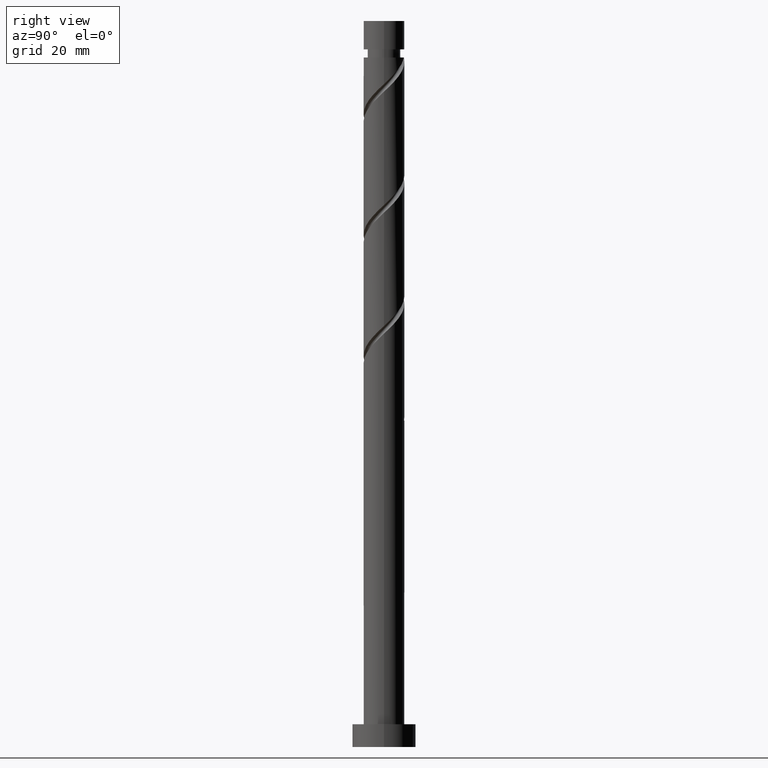
[diagram: clean part render]
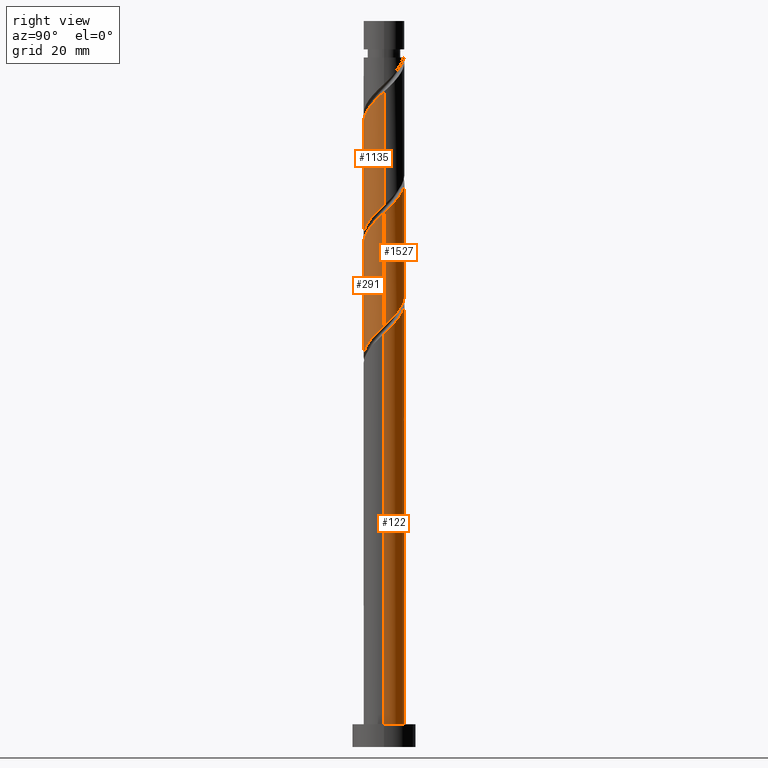
[diagram: same view with one multi-face feature highlighted, each face labeled with its STEP entity id]
A machine part, right view. The highlighted faces form ONE feature: a constant-radius fillet chain: 4 tangent blend faces with common blend radius 4.5 mm. The faces share edges in the B-rep.
Their STEP definitions:
[1] entity #1135 (Cylinder):
#3 = CARTESIAN_POINT ( 'NONE',  ( -4.500000000000000000, 0.000000000000000000, 160.0000000000000000 ) ) ;
#29 = CARTESIAN_POINT ( 'NONE',  ( 2.673760399956920608, -3.676903225482061721, 140.4377904475306877 ) ) ;
#38 = CARTESIAN_POINT ( 'NONE',  ( 3.601357663860914826, -2.774677455649294799, 141.6499116596518490 ) ) ;
#48 = VERTEX_POINT ( 'NONE', #1216 ) ;
#91 = CARTESIAN_POINT ( 'NONE',  ( -4.237671230118718491, -1.513982346470448048, 132.5590025687427271 ) ) ;
#98 = CARTESIAN_POINT ( 'NONE',  ( -2.233908606408681941, -3.959578808933017946, 135.5893055990458151 ) ) ;
#104 = VECTOR ( 'NONE', #790, 1000.000000000000000 ) ;
#108 = CARTESIAN_POINT ( 'NONE',  ( 4.019993431204683887, -2.123267486448495944, 117.4074874172276139 ) ) ;
#115 = CARTESIAN_POINT ( 'NONE',  ( 4.237671230118713162, -1.513982346470447160, 118.0135480232882514 ) ) ;
#124 = CARTESIAN_POINT ( 'NONE',  ( 4.500000000000000888, -0.1294898693571973902, 119.3469651039315096 ) ) ;
#134 = CARTESIAN_POINT ( 'NONE',  ( 1.630892978049456765, -4.194065819005344586, 114.3771843869246112 ) ) ;
#142 = CARTESIAN_POINT ( 'NONE',  ( -4.500000000000000000, -0.5153801732330511864, 106.6216897282877056 ) ) ;
#166 = CARTESIAN_POINT ( 'NONE',  ( 0.8954886933959580464, -4.410000000000006359, 138.6196086293487895 ) ) ;
#218 = CARTESIAN_POINT ( 'NONE',  ( -4.500000000000006217, -2.318307209041941552E-15, 131.1034874833812864 ) ) ;
#225 = EDGE_CURVE ( 'NONE', #1571, #813, #870, .T. ) ;
#244 = CARTESIAN_POINT ( 'NONE',  ( -0.8954886933959586015, -4.410000000000001030, 111.9529419626821607 ) ) ;
#322 = EDGE_LOOP ( 'NONE', ( #636, #542, #1319, #1633 ) ) ;
#338 = DIRECTION ( 'NONE',  ( -0.000000000000000000, -0.000000000000000000, -1.000000000000000000 ) ) ;
#351 = CARTESIAN_POINT ( 'NONE',  ( -4.500000000000005329, -0.1294898693572155701, 131.2255854880995116 ) ) ;
#383 = CARTESIAN_POINT ( 'NONE',  ( 2.233908606408677056, -3.959578808933011729, 114.9832449929852203 ) ) ;
#400 = CARTESIAN_POINT ( 'NONE',  ( 2.101655684935354707, -3.979075694426907006, 139.8317298414700076 ) ) ;
#403 = CARTESIAN_POINT ( 'NONE',  ( -4.237194347937610850, -1.647663820002032598, 107.7105177202579256 ) ) ;
#415 = CARTESIAN_POINT ( 'NONE',  ( -4.500000000000000888, 3.559723327432168198E-15, 106.1357297753163778 ) ) ;
#484 = CARTESIAN_POINT ( 'NONE',  ( -4.019993431204690104, -2.123267486448498165, 133.1650631748033788 ) ) ;
#491 = CARTESIAN_POINT ( 'NONE',  ( -1.027877349690239805, -4.428552829077683661, 136.8014268111670617 ) ) ;
#507 = CARTESIAN_POINT ( 'NONE',  ( -2.101655684935353374, -3.979075694426899013, 110.7408207505609568 ) ) ;
#514 = CARTESIAN_POINT ( 'NONE',  ( 0.3832254664060548155, -4.483652332852966715, 113.1650631748033931 ) ) ;
#516 = CARTESIAN_POINT ( 'NONE',  ( -1.529550969913790137, -4.281248163371742521, 111.3468813566215800 ) ) ;
#533 = CARTESIAN_POINT ( 'NONE',  ( 4.383476546723556133, -1.017415040347144917, 143.4680934778336621 ) ) ;
#539 = CARTESIAN_POINT ( 'NONE',  ( 4.500000000000012434, -0.5153801732330393071, 143.9508608637433724 ) ) ;
#542 = ORIENTED_EDGE ( 'NONE', *, *, #1389, .F. ) ;
#558 = CARTESIAN_POINT ( 'NONE',  ( -4.500000000000000888, 3.559723327432168198E-15, 106.1357297753163778 ) ) ;
#595 = CARTESIAN_POINT ( 'NONE',  ( -3.639477652303308108, -2.646545374329497324, 133.7711237808639453 ) ) ;
#603 = CARTESIAN_POINT ( 'NONE',  ( 3.639477652303302779, -2.646545374329494660, 116.8014268111670049 ) ) ;
#625 = CARTESIAN_POINT ( 'NONE',  ( 4.492553887271115265, -0.2587654729000734566, 119.2256692354094412 ) ) ;
#636 = ORIENTED_EDGE ( 'NONE', *, *, #1493, .F. ) ;
#649 = CARTESIAN_POINT ( 'NONE',  ( -0.3832254664060574800, -4.483652332852973821, 137.4074874172275713 ) ) ;
#669 = CARTESIAN_POINT ( 'NONE',  ( 3.137559031908917273, -3.225790340565678704, 141.0438510535912258 ) ) ;
#673 = VERTEX_POINT ( 'NONE', #1499 ) ;
#712 = CYLINDRICAL_SURFACE ( 'NONE', #940, 4.500000000000000000 ) ;
#725 = CARTESIAN_POINT ( 'NONE',  ( -4.492553887271119706, -0.2587654729000719023, 131.3468813566215374 ) ) ;
#734 =( BOUNDED_CURVE ( )  B_SPLINE_CURVE ( 2, ( #218, #351, #725, #1642, #91, #484, #595, #1511, #1627, #98, #1130, #491, #649, #1552, #166, #765, #400, #29, #669, #38, #1190, #776, #533, #539, #1049 ),
 .UNSPECIFIED., .F., .T. ) 
 B_SPLINE_CURVE_WITH_KNOTS ( ( 3, 2, 2, 2, 2, 2, 2, 2, 2, 2, 2, 2, 3 ),
 ( 0.5545252162417516617, 0.5568181818181818787, 0.5681818181818181213, 0.5795454545454545858, 0.5909090909090908283, 0.6022727272727272929, 0.6136363636363636465, 0.6250000000000000000, 0.6363636363636363535, 0.6477272727272727071, 0.6590909090909091717, 0.6704545454545454142, 0.6795252162417516617 ),
 .UNSPECIFIED. ) 
 CURVE ( )  GEOMETRIC_REPRESENTATION_ITEM ( )  RATIONAL_B_SPLINE_CURVE ( ( 0.9061101570135616790, 0.9072237824201437872, 0.9090909090909210510, 0.8998376744372232894, 0.9090909090909210510, 0.8998376744372232894, 0.9090909090909210510, 0.8998376744372232894, 0.9090909090909210510, 0.8998376744372232894, 0.9090909090909210510, 0.8998376744372232894, 0.9090909090909210510, 0.8998376744372232894, 0.9090909090909210510, 0.8998376744372232894, 0.9090909090909210510, 0.8998376744372232894, 0.9090909090909210510, 0.8998376744372232894, 0.9090909090909210510, 0.8998376744372232894, 0.9090909090909210510, 0.9017048011080005532, 0.9061101570135616790 ) ) 
 REPRESENTATION_ITEM ( '' )  );
#765 = CARTESIAN_POINT ( 'NONE',  ( 1.529550969913791469, -4.281248163371747850, 139.2256692354094696 ) ) ;
#776 = CARTESIAN_POINT ( 'NONE',  ( 4.237194347937617955, -1.647663820002035040, 142.8620328717730672 ) ) ;
#790 = DIRECTION ( 'NONE',  ( -0.000000000000000000, -0.000000000000000000, -1.000000000000000000 ) ) ;
#813 = VERTEX_POINT ( 'NONE', #415 ) ;
#850 = FACE_OUTER_BOUND ( 'NONE', #322, .T. ) ;
#870 =( BOUNDED_CURVE ( )  B_SPLINE_CURVE ( 2, ( #1377, #124, #625, #1512, #115, #108, #603, #1282, #1519, #383, #134, #1159, #514, #1031, #244, #516, #507, #1153, #1025, #1538, #1424, #403, #1033, #142, #558 ),
 .UNSPECIFIED., .F., .T. ) 
 B_SPLINE_CURVE_WITH_KNOTS ( ( 3, 2, 2, 2, 2, 2, 2, 2, 2, 2, 2, 2, 3 ),
 ( 0.5545252162417512176, 0.5568181818181817677, 0.5681818181818182323, 0.5795454545454545858, 0.5909090909090909394, 0.6022727272727272929, 0.6136363636363636465, 0.6250000000000000000, 0.6363636363636363535, 0.6477272727272727071, 0.6590909090909090606, 0.6704545454545454142, 0.6795252162417513286 ),
 .UNSPECIFIED. ) 
 CURVE ( )  GEOMETRIC_REPRESENTATION_ITEM ( )  RATIONAL_B_SPLINE_CURVE ( ( 0.9061101570135546845, 0.9072237824201369039, 0.9090909090909143897, 0.8998376744372167391, 0.9090909090909143897, 0.8998376744372167391, 0.9090909090909143897, 0.8998376744372167391, 0.9090909090909143897, 0.8998376744372167391, 0.9090909090909143897, 0.8998376744372167391, 0.9090909090909143897, 0.8998376744372167391, 0.9090909090909143897, 0.8998376744372167391, 0.9090909090909143897, 0.8998376744372167391, 0.9090909090909143897, 0.8998376744372167391, 0.9090909090909143897, 0.8998376744372167391, 0.9090909090909143897, 0.9017048011079942249, 0.9061101570135549066 ) ) 
 REPRESENTATION_ITEM ( '' )  );
#909 = LINE ( 'NONE', #1030, #1422 ) ;
#940 = AXIS2_PLACEMENT_3D ( 'NONE', #1617, #338, #1231 ) ;
#1025 = CARTESIAN_POINT ( 'NONE',  ( -3.137559031908914164, -3.225790340565672487, 109.5286995384397528 ) ) ;
#1030 = CARTESIAN_POINT ( 'NONE',  ( 4.500000000000000000, 5.510910596163088569E-16, 160.0000000000000000 ) ) ;
#1031 = CARTESIAN_POINT ( 'NONE',  ( -0.2614264168781268438, -4.538751836628259539, 112.5590025687427982 ) ) ;
#1033 = CARTESIAN_POINT ( 'NONE',  ( -4.383476546723550804, -1.017415040347143140, 107.1044571141973307 ) ) ;
#1049 = CARTESIAN_POINT ( 'NONE',  ( 4.500000000000006217, 2.078998077785999559E-15, 144.4368208167146008 ) ) ;
#1130 = CARTESIAN_POINT ( 'NONE',  ( -1.630892978049461206, -4.194065819005349915, 136.1953662051064100 ) ) ;
#1135 = ADVANCED_FACE ( 'NONE', ( #850 ), #712, .T. ) ;
#1153 = CARTESIAN_POINT ( 'NONE',  ( -2.673760399956917055, -3.676903225482058168, 110.1347601445003619 ) ) ;
#1158 = LINE ( 'NONE', #3, #104 ) ;
#1159 = CARTESIAN_POINT ( 'NONE',  ( 1.027877349690238695, -4.428552829077677444, 113.7711237808640306 ) ) ;
#1190 = CARTESIAN_POINT ( 'NONE',  ( 3.919276005899265503, -2.211170637825665253, 142.2559722657124723 ) ) ;
#1216 = CARTESIAN_POINT ( 'NONE',  ( -4.500000000000006217, -2.318307209041941552E-15, 131.1034874833812864 ) ) ;
#1231 = DIRECTION ( 'NONE',  ( -1.000000000000000000, 0.000000000000000000, 0.000000000000000000 ) ) ;
#1282 = CARTESIAN_POINT ( 'NONE',  ( 3.258961873401920339, -3.169823262210493819, 116.1953662051064242 ) ) ;
#1290 = DIRECTION ( 'NONE',  ( -0.000000000000000000, -0.000000000000000000, -1.000000000000000000 ) ) ;
#1319 = ORIENTED_EDGE ( 'NONE', *, *, #1484, .T. ) ;
#1377 = CARTESIAN_POINT ( 'NONE',  ( 4.500000000000000888, -4.531916673159441860E-15, 119.4690631086497490 ) ) ;
#1389 = EDGE_CURVE ( 'NONE', #48, #673, #734, .T. ) ;
#1422 = VECTOR ( 'NONE', #1290, 1000.000000000000000 ) ;
#1424 = CARTESIAN_POINT ( 'NONE',  ( -3.919276005899260618, -2.211170637825660812, 108.3165783263185347 ) ) ;
#1459 = CARTESIAN_POINT ( 'NONE',  ( 4.500000000000000888, -4.531916673159441860E-15, 119.4690631086497490 ) ) ;
#1484 = EDGE_CURVE ( 'NONE', #48, #813, #1158, .T. ) ;
#1493 = EDGE_CURVE ( 'NONE', #673, #1571, #909, .T. ) ;
#1499 = CARTESIAN_POINT ( 'NONE',  ( 4.500000000000006217, 2.078998077785999559E-15, 144.4368208167146292 ) ) ;
#1511 = CARTESIAN_POINT ( 'NONE',  ( -3.258961873401924780, -3.169823262210498704, 134.3771843869246254 ) ) ;
#1512 = CARTESIAN_POINT ( 'NONE',  ( 4.455349029032740660, -0.9046972064923995971, 118.6196086293488747 ) ) ;
#1519 = CARTESIAN_POINT ( 'NONE',  ( 2.746435239905296477, -3.564701035571752996, 115.5893055990458009 ) ) ;
#1538 = CARTESIAN_POINT ( 'NONE',  ( -3.601357663860910385, -2.774677455649289026, 108.9226389323791437 ) ) ;
#1552 = CARTESIAN_POINT ( 'NONE',  ( 0.2614264168781251785, -4.538751836628264869, 138.0135480232882514 ) ) ;
#1571 = VERTEX_POINT ( 'NONE', #1459 ) ;
#1617 = CARTESIAN_POINT ( 'NONE',  ( 0.000000000000000000, 0.000000000000000000, 160.0000000000000000 ) ) ;
#1627 = CARTESIAN_POINT ( 'NONE',  ( -2.746435239905301362, -3.564701035571757881, 134.9832449929851634 ) ) ;
#1633 = ORIENTED_EDGE ( 'NONE', *, *, #225, .F. ) ;
#1642 = CARTESIAN_POINT ( 'NONE',  ( -4.455349029032745101, -0.9046972064923989310, 131.9529419626821607 ) ) ;
[2] entity #1527 (Cylinder):
#3 = CARTESIAN_POINT ( 'NONE',  ( -4.500000000000000000, 0.000000000000000000, 160.0000000000000000 ) ) ;
#10 = CARTESIAN_POINT ( 'NONE',  ( 4.500000000000000888, -4.531916673159441860E-15, 92.80239644198306337 ) ) ;
#39 = ORIENTED_EDGE ( 'NONE', *, *, #587, .F. ) ;
#48 = VERTEX_POINT ( 'NONE', #1216 ) ;
#104 = VECTOR ( 'NONE', #790, 1000.000000000000000 ) ;
#119 = CARTESIAN_POINT ( 'NONE',  ( -4.500000000000000000, 0.1294898693572028026, 106.0136317705981526 ) ) ;
#154 = VECTOR ( 'NONE', #1356, 1000.000000000000000 ) ;
#155 = CYLINDRICAL_SURFACE ( 'NONE', #1343, 4.500000000000000000 ) ;
#207 = CARTESIAN_POINT ( 'NONE',  ( 4.500000000000006217, 0.1294898693572107962, 117.8922521547661972 ) ) ;
#222 = CARTESIAN_POINT ( 'NONE',  ( 3.601357663860908609, 2.774677455649289914, 95.58930559904581514 ) ) ;
#249 = CARTESIAN_POINT ( 'NONE',  ( -1.027877349690238029, 4.428552829077677444, 100.4377904475306735 ) ) ;
#281 = VERTEX_POINT ( 'NONE', #10 ) ;
#283 = CARTESIAN_POINT ( 'NONE',  ( 4.500000000000006217, 2.078998077785999559E-15, 117.7701541500479721 ) ) ;
#284 =( BOUNDED_CURVE ( )  B_SPLINE_CURVE ( 2, ( #1599, #207, #585, #461, #445, #1099, #1613, #1488, #715, #1106, #960, #1472, #564, #335, #1620, #941, #320, #1458, #829, #303, #807, #1516, #1120, #340, #869 ),
 .UNSPECIFIED., .F., .T. ) 
 B_SPLINE_CURVE_WITH_KNOTS ( ( 3, 2, 2, 2, 2, 2, 2, 2, 2, 2, 2, 2, 3 ),
 ( 0.4295252162417514952, 0.4318181818181817677, 0.4431818181818182323, 0.4545454545454545858, 0.4659090909090909394, 0.4772727272727272929, 0.4886363636363636465, 0.5000000000000000000, 0.5113636363636363535, 0.5227272727272727071, 0.5340909090909091717, 0.5454545454545454142, 0.5545252162417516617 ),
 .UNSPECIFIED. ) 
 CURVE ( )  GEOMETRIC_REPRESENTATION_ITEM ( )  RATIONAL_B_SPLINE_CURVE ( ( 0.9061101570135615679, 0.9072237824201436762, 0.9090909090909210510, 0.8998376744372232894, 0.9090909090909210510, 0.8998376744372232894, 0.9090909090909210510, 0.8998376744372232894, 0.9090909090909210510, 0.8998376744372232894, 0.9090909090909210510, 0.8998376744372232894, 0.9090909090909210510, 0.8998376744372232894, 0.9090909090909210510, 0.8998376744372232894, 0.9090909090909210510, 0.8998376744372232894, 0.9090909090909210510, 0.8998376744372232894, 0.9090909090909210510, 0.8998376744372232894, 0.9090909090909210510, 0.9017048011080005532, 0.9061101570135616790 ) ) 
 REPRESENTATION_ITEM ( '' )  );
#303 = CARTESIAN_POINT ( 'NONE',  ( -3.601357663860915270, 2.774677455649293911, 128.3165783263185631 ) ) ;
#320 = CARTESIAN_POINT ( 'NONE',  ( -2.101655684935356039, 3.979075694426905230, 126.4983965081366790 ) ) ;
#335 = CARTESIAN_POINT ( 'NONE',  ( -0.2614264168781245123, 4.538751836628264869, 124.6802146899549086 ) ) ;
#340 = CARTESIAN_POINT ( 'NONE',  ( -4.500000000000010658, 0.5153801732330395291, 130.6175275304100012 ) ) ;
#415 = CARTESIAN_POINT ( 'NONE',  ( -4.500000000000000888, 3.559723327432168198E-15, 106.1357297753163778 ) ) ;
#445 = CARTESIAN_POINT ( 'NONE',  ( 4.237671230118718491, 1.513982346470447382, 119.2256692354094412 ) ) ;
#461 = CARTESIAN_POINT ( 'NONE',  ( 4.455349029032745101, 0.9046972064923982648, 118.6196086293488179 ) ) ;
#469 = CARTESIAN_POINT ( 'NONE',  ( 4.383476546723549916, 1.017415040347141586, 93.77112378086398792 ) ) ;
#481 = CARTESIAN_POINT ( 'NONE',  ( 0.2614264168781255671, 4.538751836628258651, 99.22566923540945538 ) ) ;
#494 = CARTESIAN_POINT ( 'NONE',  ( -3.639477652303301891, 2.646545374329494660, 103.4680934778337047 ) ) ;
#522 = DIRECTION ( 'NONE',  ( -1.000000000000000000, 0.000000000000000000, 0.000000000000000000 ) ) ;
#564 = CARTESIAN_POINT ( 'NONE',  ( 0.3832254664060578686, 4.483652332852973821, 124.0741540838942853 ) ) ;
#585 = CARTESIAN_POINT ( 'NONE',  ( 4.492553887271119706, 0.2587654729000713472, 118.0135480232882230 ) ) ;
#587 = EDGE_CURVE ( 'NONE', #791, #48, #284, .T. ) ;
#592 = CARTESIAN_POINT ( 'NONE',  ( 1.529550969913791025, 4.281248163371742521, 98.01354802328823723 ) ) ;
#600 = CARTESIAN_POINT ( 'NONE',  ( -3.258961873401919007, 3.169823262210494708, 102.8620328717730814 ) ) ;
#608 = CARTESIAN_POINT ( 'NONE',  ( -1.630892978049456765, 4.194065819005344586, 101.0438510535912542 ) ) ;
#620 = CARTESIAN_POINT ( 'NONE',  ( -0.3832254664060561478, 4.483652332852966715, 99.83172984147007867 ) ) ;
#670 = EDGE_CURVE ( 'NONE', #813, #281, #789, .T. ) ;
#715 = CARTESIAN_POINT ( 'NONE',  ( 2.746435239905300918, 3.564701035571758325, 121.6499116596518206 ) ) ;
#737 = CARTESIAN_POINT ( 'NONE',  ( -2.746435239905296921, 3.564701035571752552, 102.2559722657124865 ) ) ;
#747 = CARTESIAN_POINT ( 'NONE',  ( 3.919276005899260618, 2.211170637825661700, 94.98324499298522028 ) ) ;
#775 = ORIENTED_EDGE ( 'NONE', *, *, #670, .F. ) ;
#789 =( BOUNDED_CURVE ( )  B_SPLINE_CURVE ( 2, ( #983, #119, #886, #1632, #1401, #1271, #494, #600, #737, #1638, #608, #249, #620, #481, #998, #592, #1133, #1256, #1005, #222, #747, #1248, #469, #1140, #876 ),
 .UNSPECIFIED., .F., .T. ) 
 B_SPLINE_CURVE_WITH_KNOTS ( ( 3, 2, 2, 2, 2, 2, 2, 2, 2, 2, 2, 2, 3 ),
 ( 0.6795252162417513286, 0.6818181818181817677, 0.6931818181818182323, 0.7045454545454545858, 0.7159090909090909394, 0.7272727272727272929, 0.7386363636363636465, 0.7500000000000000000, 0.7613636363636363535, 0.7727272727272727071, 0.7840909090909090606, 0.7954545454545454142, 0.8045252162417513286 ),
 .UNSPECIFIED. ) 
 CURVE ( )  GEOMETRIC_REPRESENTATION_ITEM ( )  RATIONAL_B_SPLINE_CURVE ( ( 0.9061101570135549066, 0.9072237824201370149, 0.9090909090909143897, 0.8998376744372167391, 0.9090909090909143897, 0.8998376744372167391, 0.9090909090909143897, 0.8998376744372167391, 0.9090909090909143897, 0.8998376744372167391, 0.9090909090909143897, 0.8998376744372167391, 0.9090909090909143897, 0.8998376744372167391, 0.9090909090909143897, 0.8998376744372167391, 0.9090909090909143897, 0.8998376744372167391, 0.9090909090909143897, 0.8998376744372167391, 0.9090909090909143897, 0.8998376744372167391, 0.9090909090909143897, 0.9017048011079942249, 0.9061101570135549066 ) ) 
 REPRESENTATION_ITEM ( '' )  );
#790 = DIRECTION ( 'NONE',  ( -0.000000000000000000, -0.000000000000000000, -1.000000000000000000 ) ) ;
#791 = VERTEX_POINT ( 'NONE', #283 ) ;
#807 = CARTESIAN_POINT ( 'NONE',  ( -3.919276005899265503, 2.211170637825665253, 128.9226389323791011 ) ) ;
#808 = ORIENTED_EDGE ( 'NONE', *, *, #1119, .T. ) ;
#813 = VERTEX_POINT ( 'NONE', #415 ) ;
#829 = CARTESIAN_POINT ( 'NONE',  ( -3.137559031908917273, 3.225790340565678704, 127.7105177202579256 ) ) ;
#869 = CARTESIAN_POINT ( 'NONE',  ( -4.500000000000006217, -2.318307209041941552E-15, 131.1034874833812864 ) ) ;
#876 = CARTESIAN_POINT ( 'NONE',  ( 4.500000000000000888, -4.531916673159442649E-15, 92.80239644198306337 ) ) ;
#886 = CARTESIAN_POINT ( 'NONE',  ( -4.492553887271115265, 0.2587654729000727905, 105.8923359020761126 ) ) ;
#941 = CARTESIAN_POINT ( 'NONE',  ( -1.529550969913792136, 4.281248163371746962, 125.8923359020761268 ) ) ;
#960 = CARTESIAN_POINT ( 'NONE',  ( 1.630892978049459430, 4.194065819005349915, 122.8620328717730530 ) ) ;
#983 = CARTESIAN_POINT ( 'NONE',  ( -4.500000000000000888, 3.559723327432168198E-15, 106.1357297753163778 ) ) ;
#998 = CARTESIAN_POINT ( 'NONE',  ( 0.8954886933959590456, 4.410000000000001030, 98.61960862934886052 ) ) ;
#1005 = CARTESIAN_POINT ( 'NONE',  ( 3.137559031908912832, 3.225790340565672931, 96.19536620510641001 ) ) ;
#1099 = CARTESIAN_POINT ( 'NONE',  ( 4.019993431204692769, 2.123267486448496832, 119.8317298414700360 ) ) ;
#1106 = CARTESIAN_POINT ( 'NONE',  ( 2.233908606408679720, 3.959578808933018834, 122.2559722657124581 ) ) ;
#1119 = EDGE_CURVE ( 'NONE', #791, #281, #1603, .T. ) ;
#1120 = CARTESIAN_POINT ( 'NONE',  ( -4.383476546723555245, 1.017415040347145361, 130.1347601445003477 ) ) ;
#1133 = CARTESIAN_POINT ( 'NONE',  ( 2.101655684935353818, 3.979075694426899013, 97.40748741722765658 ) ) ;
#1140 = CARTESIAN_POINT ( 'NONE',  ( 4.500000000000000000, 0.5153801732330497432, 93.28835639495436283 ) ) ;
#1158 = LINE ( 'NONE', #3, #104 ) ;
#1181 = CARTESIAN_POINT ( 'NONE',  ( 0.000000000000000000, 0.000000000000000000, 160.0000000000000000 ) ) ;
#1216 = CARTESIAN_POINT ( 'NONE',  ( -4.500000000000006217, -2.318307209041941552E-15, 131.1034874833812864 ) ) ;
#1248 = CARTESIAN_POINT ( 'NONE',  ( 4.237194347937611738, 1.647663820002029489, 94.37718438692458278 ) ) ;
#1256 = CARTESIAN_POINT ( 'NONE',  ( 2.673760399956917500, 3.676903225482056392, 96.80142681116703329 ) ) ;
#1271 = CARTESIAN_POINT ( 'NONE',  ( -4.019993431204683887, 2.123267486448495944, 104.0741540838942996 ) ) ;
#1300 = ORIENTED_EDGE ( 'NONE', *, *, #1484, .F. ) ;
#1305 = FACE_OUTER_BOUND ( 'NONE', #1557, .T. ) ;
#1343 = AXIS2_PLACEMENT_3D ( 'NONE', #1181, #1572, #522 ) ;
#1351 = CARTESIAN_POINT ( 'NONE',  ( 4.500000000000000000, 5.510910596163088569E-16, 160.0000000000000000 ) ) ;
#1356 = DIRECTION ( 'NONE',  ( -0.000000000000000000, -0.000000000000000000, -1.000000000000000000 ) ) ;
#1401 = CARTESIAN_POINT ( 'NONE',  ( -4.237671230118713162, 1.513982346470446494, 104.6802146899549228 ) ) ;
#1458 = CARTESIAN_POINT ( 'NONE',  ( -2.673760399956920164, 3.676903225482062609, 127.1044571141973449 ) ) ;
#1472 = CARTESIAN_POINT ( 'NONE',  ( 1.027877349690240472, 4.428552829077682773, 123.4680934778336763 ) ) ;
#1484 = EDGE_CURVE ( 'NONE', #48, #813, #1158, .T. ) ;
#1488 = CARTESIAN_POINT ( 'NONE',  ( 3.258961873401925669, 3.169823262210496484, 121.0438510535912542 ) ) ;
#1516 = CARTESIAN_POINT ( 'NONE',  ( -4.237194347937617067, 1.647663820002036150, 129.5286995384397244 ) ) ;
#1527 = ADVANCED_FACE ( 'NONE', ( #1305 ), #155, .T. ) ;
#1557 = EDGE_LOOP ( 'NONE', ( #39, #808, #775, #1300 ) ) ;
#1572 = DIRECTION ( 'NONE',  ( -0.000000000000000000, -0.000000000000000000, -1.000000000000000000 ) ) ;
#1599 = CARTESIAN_POINT ( 'NONE',  ( 4.500000000000006217, 2.078998077785999559E-15, 117.7701541500479721 ) ) ;
#1603 = LINE ( 'NONE', #1351, #154 ) ;
#1613 = CARTESIAN_POINT ( 'NONE',  ( 3.639477652303308108, 2.646545374329495992, 120.4377904475306309 ) ) ;
#1620 = CARTESIAN_POINT ( 'NONE',  ( -0.8954886933959572692, 4.410000000000006359, 125.2862752960154893 ) ) ;
#1632 = CARTESIAN_POINT ( 'NONE',  ( -4.455349029032740660, 0.9046972064923991530, 105.2862752960155319 ) ) ;
#1638 = CARTESIAN_POINT ( 'NONE',  ( -2.233908606408677056, 3.959578808933011729, 101.6499116596518917 ) ) ;
[3] entity #291 (Cylinder):
#10 = CARTESIAN_POINT ( 'NONE',  ( 4.500000000000000888, -4.531916673159441860E-15, 92.80239644198306337 ) ) ;
#17 = CARTESIAN_POINT ( 'NONE',  ( 0.000000000000000000, 0.000000000000000000, 160.0000000000000000 ) ) ;
#47 = CARTESIAN_POINT ( 'NONE',  ( 4.492553887271115265, -0.2587654729000734566, 92.55900256874278398 ) ) ;
#58 = CARTESIAN_POINT ( 'NONE',  ( 2.233908606408677056, -3.959578808933011729, 88.31657832631856309 ) ) ;
#67 = CARTESIAN_POINT ( 'NONE',  ( 4.500000000000000888, -4.531916673159442649E-15, 92.80239644198306337 ) ) ;
#75 = CARTESIAN_POINT ( 'NONE',  ( 3.258961873401920339, -3.169823262210493819, 89.52869953843972439 ) ) ;
#84 = CARTESIAN_POINT ( 'NONE',  ( 1.630892978049456765, -4.194065819005344586, 87.71051772025792559 ) ) ;
#107 = CARTESIAN_POINT ( 'NONE',  ( 0.8954886933959580464, -4.410000000000006359, 111.9529419626821181 ) ) ;
#139 = CARTESIAN_POINT ( 'NONE',  ( -4.500000000000000888, 3.559723327432168198E-15, 79.46906310864973477 ) ) ;
#154 = VECTOR ( 'NONE', #1356, 1000.000000000000000 ) ;
#175 = ORIENTED_EDGE ( 'NONE', *, *, #1639, .T. ) ;
#182 = CARTESIAN_POINT ( 'NONE',  ( -4.383476546723550804, -1.017415040347143140, 80.43779044753067353 ) ) ;
#194 = CARTESIAN_POINT ( 'NONE',  ( -4.500000000000000000, -0.5153801732330575147, 79.95502306162104844 ) ) ;
#252 = VERTEX_POINT ( 'NONE', #139 ) ;
#253 = CARTESIAN_POINT ( 'NONE',  ( 3.137559031908917273, -3.225790340565678704, 114.3771843869245970 ) ) ;
#275 = CYLINDRICAL_SURFACE ( 'NONE', #344, 4.500000000000000000 ) ;
#281 = VERTEX_POINT ( 'NONE', #10 ) ;
#283 = CARTESIAN_POINT ( 'NONE',  ( 4.500000000000006217, 2.078998077785999559E-15, 117.7701541500479721 ) ) ;
#291 = ADVANCED_FACE ( 'NONE', ( #1437 ), #275, .T. ) ;
#294 = DIRECTION ( 'NONE',  ( -0.000000000000000000, -0.000000000000000000, -1.000000000000000000 ) ) ;
#312 = CARTESIAN_POINT ( 'NONE',  ( 4.019993431204683887, -2.123267486448495944, 90.74082075056097096 ) ) ;
#330 = CARTESIAN_POINT ( 'NONE',  ( -3.601357663860910385, -2.774677455649289026, 82.25597226571248655 ) ) ;
#344 = AXIS2_PLACEMENT_3D ( 'NONE', #17, #294, #1055 ) ;
#382 = CARTESIAN_POINT ( 'NONE',  ( -4.019993431204690104, -2.123267486448498165, 106.4983965081367074 ) ) ;
#397 = VECTOR ( 'NONE', #1361, 1000.000000000000000 ) ;
#423 = VERTEX_POINT ( 'NONE', #1087 ) ;
#437 = CARTESIAN_POINT ( 'NONE',  ( -4.237194347937610850, -1.647663820002032598, 81.04385105359129682 ) ) ;
#452 = CARTESIAN_POINT ( 'NONE',  ( 3.639477652303302779, -2.646545374329494660, 90.13476014450033347 ) ) ;
#497 = CARTESIAN_POINT ( 'NONE',  ( -1.630892978049461206, -4.194065819005349915, 109.5286995384397244 ) ) ;
#518 = EDGE_CURVE ( 'NONE', #281, #252, #1144, .T. ) ;
#555 = CARTESIAN_POINT ( 'NONE',  ( 4.455349029032740660, -0.9046972064923995971, 91.95294196268220333 ) ) ;
#557 = ORIENTED_EDGE ( 'NONE', *, *, #1358, .F. ) ;
#602 = CARTESIAN_POINT ( 'NONE',  ( 4.383476546723556133, -1.017415040347144917, 116.8014268111669907 ) ) ;
#612 = CARTESIAN_POINT ( 'NONE',  ( -4.455349029032745101, -0.9046972064923989310, 105.2862752960155035 ) ) ;
#687 = CARTESIAN_POINT ( 'NONE',  ( 4.500000000000000000, -0.1294898693572036630, 92.68029843726482397 ) ) ;
#709 = CARTESIAN_POINT ( 'NONE',  ( -4.500000000000000888, 3.559723327432168198E-15, 79.46906310864973477 ) ) ;
#732 = CARTESIAN_POINT ( 'NONE',  ( -0.3832254664060574800, -4.483652332852973821, 110.7408207505609568 ) ) ;
#740 = CARTESIAN_POINT ( 'NONE',  ( -1.027877349690239805, -4.428552829077683661, 110.1347601445003619 ) ) ;
#757 = CARTESIAN_POINT ( 'NONE',  ( 3.601357663860914826, -2.774677455649294799, 114.9832449929851776 ) ) ;
#791 = VERTEX_POINT ( 'NONE', #283 ) ;
#818 = CARTESIAN_POINT ( 'NONE',  ( -0.2614264168781268438, -4.538751836628259539, 85.89233590207612679 ) ) ;
#839 = CARTESIAN_POINT ( 'NONE',  ( -3.919276005899260618, -2.211170637825660812, 81.64991165965189168 ) ) ;
#873 = CARTESIAN_POINT ( 'NONE',  ( -4.492553887271119706, -0.2587654729000719023, 104.6802146899548802 ) ) ;
#889 = CARTESIAN_POINT ( 'NONE',  ( 0.2614264168781251785, -4.538751836628264869, 111.3468813566215800 ) ) ;
#900 = CARTESIAN_POINT ( 'NONE',  ( -3.258961873401924780, -3.169823262210498704, 107.7105177202578972 ) ) ;
#935 = ORIENTED_EDGE ( 'NONE', *, *, #1119, .F. ) ;
#952 = CARTESIAN_POINT ( 'NONE',  ( 2.746435239905296477, -3.564701035571752996, 88.92263893237914374 ) ) ;
#976 = CARTESIAN_POINT ( 'NONE',  ( 1.027877349690238695, -4.428552829077677444, 87.10445711419730230 ) ) ;
#977 = CARTESIAN_POINT ( 'NONE',  ( -4.500000000000000000, 0.000000000000000000, 160.0000000000000000 ) ) ;
#1002 = CARTESIAN_POINT ( 'NONE',  ( 1.529550969913791469, -4.281248163371747850, 112.5590025687427840 ) ) ;
#1055 = DIRECTION ( 'NONE',  ( -1.000000000000000000, 0.000000000000000000, 0.000000000000000000 ) ) ;
#1078 = CARTESIAN_POINT ( 'NONE',  ( -3.137559031908914164, -3.225790340565672487, 82.86203287177308141 ) ) ;
#1087 = CARTESIAN_POINT ( 'NONE',  ( -4.500000000000006217, -2.318307209041941552E-15, 104.4368208167146292 ) ) ;
#1094 = CARTESIAN_POINT ( 'NONE',  ( 4.237671230118713162, -1.513982346470447160, 91.34688135662155162 ) ) ;
#1114 = CARTESIAN_POINT ( 'NONE',  ( -2.233908606408681941, -3.959578808933017946, 108.9226389323791295 ) ) ;
#1119 = EDGE_CURVE ( 'NONE', #791, #281, #1603, .T. ) ;
#1124 = CARTESIAN_POINT ( 'NONE',  ( -2.746435239905301362, -3.564701035571757881, 108.3165783263185205 ) ) ;
#1136 = ORIENTED_EDGE ( 'NONE', *, *, #518, .F. ) ;
#1137 = CARTESIAN_POINT ( 'NONE',  ( -4.500000000000005329, -2.318307209041941552E-15, 104.4368208167146292 ) ) ;
#1144 =( BOUNDED_CURVE ( )  B_SPLINE_CURVE ( 2, ( #67, #687, #47, #555, #1094, #312, #452, #75, #952, #58, #84, #976, #1346, #818, #1589, #1334, #1481, #1210, #1078, #330, #839, #437, #182, #194, #709 ),
 .UNSPECIFIED., .F., .T. ) 
 B_SPLINE_CURVE_WITH_KNOTS ( ( 3, 2, 2, 2, 2, 2, 2, 2, 2, 2, 2, 2, 3 ),
 ( 0.8045252162417513286, 0.8068181818181817677, 0.8181818181818182323, 0.8295454545454545858, 0.8409090909090909394, 0.8522727272727272929, 0.8636363636363636465, 0.8750000000000000000, 0.8863636363636363535, 0.8977272727272727071, 0.9090909090909090606, 0.9204545454545454142, 0.9295252162417512176 ),
 .UNSPECIFIED. ) 
 CURVE ( )  GEOMETRIC_REPRESENTATION_ITEM ( )  RATIONAL_B_SPLINE_CURVE ( ( 0.9061101570135549066, 0.9072237824201370149, 0.9090909090909143897, 0.8998376744372167391, 0.9090909090909143897, 0.8998376744372167391, 0.9090909090909143897, 0.8998376744372167391, 0.9090909090909143897, 0.8998376744372167391, 0.9090909090909143897, 0.8998376744372167391, 0.9090909090909143897, 0.8998376744372167391, 0.9090909090909143897, 0.8998376744372167391, 0.9090909090909143897, 0.8998376744372167391, 0.9090909090909143897, 0.8998376744372167391, 0.9090909090909143897, 0.8998376744372167391, 0.9090909090909143897, 0.9017048011079942249, 0.9061101570135546845 ) ) 
 REPRESENTATION_ITEM ( '' )  );
#1145 = CARTESIAN_POINT ( 'NONE',  ( 3.919276005899265503, -2.211170637825665253, 115.5893055990457867 ) ) ;
#1210 = CARTESIAN_POINT ( 'NONE',  ( -2.673760399956917055, -3.676903225482058168, 83.46809347783366206 ) ) ;
#1252 = CARTESIAN_POINT ( 'NONE',  ( 4.237194347937617955, -1.647663820002035040, 116.1953662051064100 ) ) ;
#1334 = CARTESIAN_POINT ( 'NONE',  ( -1.529550969913790137, -4.281248163371742521, 84.68021468995490864 ) ) ;
#1346 = CARTESIAN_POINT ( 'NONE',  ( 0.3832254664060548155, -4.483652332852966715, 86.49839650813672165 ) ) ;
#1351 = CARTESIAN_POINT ( 'NONE',  ( 4.500000000000000000, 5.510910596163088569E-16, 160.0000000000000000 ) ) ;
#1356 = DIRECTION ( 'NONE',  ( -0.000000000000000000, -0.000000000000000000, -1.000000000000000000 ) ) ;
#1357 = EDGE_LOOP ( 'NONE', ( #935, #557, #175, #1136 ) ) ;
#1358 = EDGE_CURVE ( 'NONE', #423, #791, #1420, .T. ) ;
#1361 = DIRECTION ( 'NONE',  ( -0.000000000000000000, -0.000000000000000000, -1.000000000000000000 ) ) ;
#1376 = CARTESIAN_POINT ( 'NONE',  ( 2.673760399956920608, -3.676903225482061721, 113.7711237808640021 ) ) ;
#1405 = CARTESIAN_POINT ( 'NONE',  ( 2.101655684935354707, -3.979075694426907006, 113.1650631748033646 ) ) ;
#1420 =( BOUNDED_CURVE ( )  B_SPLINE_CURVE ( 2, ( #1137, #1649, #873, #612, #1505, #382, #1529, #900, #1124, #1114, #497, #740, #732, #889, #107, #1002, #1405, #1376, #253, #757, #1145, #1252, #602, #1518, #1635 ),
 .UNSPECIFIED., .F., .T. ) 
 B_SPLINE_CURVE_WITH_KNOTS ( ( 3, 2, 2, 2, 2, 2, 2, 2, 2, 2, 2, 2, 3 ),
 ( 0.3045252162417513286, 0.3068181818181817677, 0.3181818181818182323, 0.3295454545454545858, 0.3409090909090909394, 0.3522727272727272929, 0.3636363636363636465, 0.3750000000000000000, 0.3863636363636363535, 0.3977272727272727071, 0.4090909090909090606, 0.4204545454545454142, 0.4295252162417514952 ),
 .UNSPECIFIED. ) 
 CURVE ( )  GEOMETRIC_REPRESENTATION_ITEM ( )  RATIONAL_B_SPLINE_CURVE ( ( 0.9061101570135614569, 0.9072237824201435652, 0.9090909090909210510, 0.8998376744372232894, 0.9090909090909210510, 0.8998376744372232894, 0.9090909090909210510, 0.8998376744372232894, 0.9090909090909210510, 0.8998376744372232894, 0.9090909090909210510, 0.8998376744372232894, 0.9090909090909210510, 0.8998376744372232894, 0.9090909090909210510, 0.8998376744372232894, 0.9090909090909210510, 0.8998376744372232894, 0.9090909090909210510, 0.8998376744372232894, 0.9090909090909210510, 0.8998376744372232894, 0.9090909090909210510, 0.9017048011080006642, 0.9061101570135615679 ) ) 
 REPRESENTATION_ITEM ( '' )  );
#1437 = FACE_OUTER_BOUND ( 'NONE', #1357, .T. ) ;
#1481 = CARTESIAN_POINT ( 'NONE',  ( -2.101655684935353374, -3.979075694426899013, 84.07415408389429956 ) ) ;
#1505 = CARTESIAN_POINT ( 'NONE',  ( -4.237671230118718491, -1.513982346470448048, 105.8923359020761126 ) ) ;
#1518 = CARTESIAN_POINT ( 'NONE',  ( 4.500000000000010658, -0.5153801732330436369, 117.2841941970766868 ) ) ;
#1529 = CARTESIAN_POINT ( 'NONE',  ( -3.639477652303308108, -2.646545374329497324, 107.1044571141973023 ) ) ;
#1589 = CARTESIAN_POINT ( 'NONE',  ( -0.8954886933959586015, -4.410000000000001030, 85.28627529601550350 ) ) ;
#1590 = LINE ( 'NONE', #977, #397 ) ;
#1603 = LINE ( 'NONE', #1351, #154 ) ;
#1635 = CARTESIAN_POINT ( 'NONE',  ( 4.500000000000006217, 2.078998077785999559E-15, 117.7701541500479721 ) ) ;
#1639 = EDGE_CURVE ( 'NONE', #423, #252, #1590, .T. ) ;
#1649 = CARTESIAN_POINT ( 'NONE',  ( -4.500000000000006217, -0.1294898693572017756, 104.5589188214328260 ) ) ;
[4] entity #122 (Cylinder):
#7 = LINE ( 'NONE', #536, #1656 ) ;
#11 = CARTESIAN_POINT ( 'NONE',  ( 4.492553887271119706, 0.2587654729000713472, 91.34688135662155162 ) ) ;
#19 = CARTESIAN_POINT ( 'NONE',  ( -3.919276005899265503, 2.211170637825665253, 102.2559722657124723 ) ) ;
#22 = CARTESIAN_POINT ( 'NONE',  ( 0.8954886933959588236, 4.410000000000000142, 71.95294196268216069 ) ) ;
#45 =( BOUNDED_CURVE ( )  B_SPLINE_CURVE ( 2, ( #428, #1562, #11, #261, #1067, #1318, #917, #548, #1581, #933, #1431, #1173, #410, #924, #513, #276, #1281, #1411, #1545, #419, #19, #1439, #133, #782, #1448 ),
 .UNSPECIFIED., .F., .T. ) 
 B_SPLINE_CURVE_WITH_KNOTS ( ( 3, 2, 2, 2, 2, 2, 2, 2, 2, 2, 2, 2, 3 ),
 ( 0.1795252162417513564, 0.1818181818181817677, 0.1931818181818182323, 0.2045454545454545858, 0.2159090909090909394, 0.2272727272727272929, 0.2386363636363636465, 0.2500000000000000000, 0.2613636363636363535, 0.2727272727272727071, 0.2840909090909090606, 0.2954545454545454142, 0.3045252162417513286 ),
 .UNSPECIFIED. ) 
 CURVE ( )  GEOMETRIC_REPRESENTATION_ITEM ( )  RATIONAL_B_SPLINE_CURVE ( ( 0.9061101570135614569, 0.9072237824201435652, 0.9090909090909210510, 0.8998376744372232894, 0.9090909090909210510, 0.8998376744372232894, 0.9090909090909210510, 0.8998376744372232894, 0.9090909090909210510, 0.8998376744372232894, 0.9090909090909210510, 0.8998376744372232894, 0.9090909090909210510, 0.8998376744372232894, 0.9090909090909210510, 0.8998376744372232894, 0.9090909090909210510, 0.8998376744372232894, 0.9090909090909210510, 0.8998376744372232894, 0.9090909090909210510, 0.8998376744372232894, 0.9090909090909210510, 0.9017048011080006642, 0.9061101570135614569 ) ) 
 REPRESENTATION_ITEM ( '' )  );
#65 = EDGE_CURVE ( 'NONE', #252, #1063, #694, .T. ) ;
#77 = CARTESIAN_POINT ( 'NONE',  ( 4.500000000000000000, 5.510910596163088569E-16, 160.0000000000000000 ) ) ;
#89 = CARTESIAN_POINT ( 'NONE',  ( -3.601357663860915270, 2.774677455649293911, 74.98324499298520607 ) ) ;
#100 = AXIS2_PLACEMENT_3D ( 'NONE', #137, #1019, #904 ) ;
#105 = ORIENTED_EDGE ( 'NONE', *, *, #1441, .F. ) ;
#111 = EDGE_CURVE ( 'NONE', #1170, #1331, #1074, .T. ) ;
#122 = ADVANCED_FACE ( 'NONE', ( #420 ), #364, .T. ) ;
#133 = CARTESIAN_POINT ( 'NONE',  ( -4.383476546723555245, 1.017415040347145361, 103.4680934778336621 ) ) ;
#137 = CARTESIAN_POINT ( 'NONE',  ( 0.000000000000000000, 0.000000000000000000, 71.95294196268216069 ) ) ;
#139 = CARTESIAN_POINT ( 'NONE',  ( -4.500000000000000888, 3.559723327432168198E-15, 79.46906310864973477 ) ) ;
#151 = ORIENTED_EDGE ( 'NONE', *, *, #750, .F. ) ;
#156 = DIRECTION ( 'NONE',  ( 0.000000000000000000, 0.000000000000000000, 1.000000000000000000 ) ) ;
#157 = ORIENTED_EDGE ( 'NONE', *, *, #820, .T. ) ;
#185 = AXIS2_PLACEMENT_3D ( 'NONE', #1563, #156, #1057 ) ;
#190 = VECTOR ( 'NONE', #1228, 1000.000000000000000 ) ;
#215 = CARTESIAN_POINT ( 'NONE',  ( -1.529550969913792136, 4.281248163371746962, 72.55900256874275556 ) ) ;
#235 = CARTESIAN_POINT ( 'NONE',  ( -4.500000000000000000, 0.000000000000000000, 5.000000000000000000 ) ) ;
#252 = VERTEX_POINT ( 'NONE', #139 ) ;
#254 = DIRECTION ( 'NONE',  ( -1.000000000000000000, 0.000000000000000000, 0.000000000000000000 ) ) ;
#261 = CARTESIAN_POINT ( 'NONE',  ( 4.455349029032745101, 0.9046972064923982648, 91.95294196268217490 ) ) ;
#276 = CARTESIAN_POINT ( 'NONE',  ( -1.529550969913792136, 4.281248163371746962, 99.22566923540942696 ) ) ;
#295 = CARTESIAN_POINT ( 'NONE',  ( 4.500000000000006217, 2.078998077785999559E-15, 91.10348748338131486 ) ) ;
#307 = CARTESIAN_POINT ( 'NONE',  ( -4.455349029032740660, 0.9046972064923991530, 78.61960862934886052 ) ) ;
#314 = VERTEX_POINT ( 'NONE', #781 ) ;
#316 = CARTESIAN_POINT ( 'NONE',  ( -4.500000000000000888, 0.1294898693571965853, 79.34696510393152380 ) ) ;
#348 = CARTESIAN_POINT ( 'NONE',  ( -4.237194347937617067, 1.647663820002036150, 76.19536620510642422 ) ) ;
#356 = CARTESIAN_POINT ( 'NONE',  ( -4.383476546723555245, 1.017415040347145361, 76.80142681116700487 ) ) ;
#364 = CYLINDRICAL_SURFACE ( 'NONE', #1551, 4.500000000000000000 ) ;
#381 = ORIENTED_EDGE ( 'NONE', *, *, #1615, .T. ) ;
#386 = CARTESIAN_POINT ( 'NONE',  ( -1.630892978049456765, 4.194065819005344586, 74.37718438692458278 ) ) ;
#389 = CARTESIAN_POINT ( 'NONE',  ( -0.8954886933959574913, 4.410000000000006359, 71.95294196268216069 ) ) ;
#397 = VECTOR ( 'NONE', #1361, 1000.000000000000000 ) ;
#409 = ORIENTED_EDGE ( 'NONE', *, *, #111, .T. ) ;
#410 = CARTESIAN_POINT ( 'NONE',  ( 0.3832254664060578686, 4.483652332852973821, 97.40748741722761395 ) ) ;
#412 = CARTESIAN_POINT ( 'NONE',  ( -4.019993431204683887, 2.123267486448495944, 77.40748741722764237 ) ) ;
#418 = ORIENTED_EDGE ( 'NONE', *, *, #1639, .F. ) ;
#419 = CARTESIAN_POINT ( 'NONE',  ( -3.601357663860915270, 2.774677455649293911, 101.6499116596518775 ) ) ;
#420 = FACE_OUTER_BOUND ( 'NONE', #434, .T. ) ;
#423 = VERTEX_POINT ( 'NONE', #1087 ) ;
#428 = CARTESIAN_POINT ( 'NONE',  ( 4.500000000000005329, 2.078998077785999559E-15, 91.10348748338131486 ) ) ;
#434 = EDGE_LOOP ( 'NONE', ( #105, #381, #409, #683, #151, #157, #1199, #418 ) ) ;
#441 = CARTESIAN_POINT ( 'NONE',  ( -4.500000000000000888, 3.559723327432168198E-15, 79.46906310864973477 ) ) ;
#474 = CARTESIAN_POINT ( 'NONE',  ( -3.919276005899265503, 2.211170637825665253, 75.58930559904580093 ) ) ;
#510 =( BOUNDED_CURVE ( )  B_SPLINE_CURVE ( 2, ( #615, #215, #1508, #722, #1240, #89, #474, #348, #356, #1533, #920 ),
 .UNSPECIFIED., .F., .T. ) 
 B_SPLINE_CURVE_WITH_KNOTS ( ( 3, 2, 2, 2, 2, 3 ),
 ( 0.000000000000000000, 0.01136363636363635354, 0.02272727272727270709, 0.03409090909090906063, 0.04545454545454541417, 0.05452521624175139803 ),
 .UNSPECIFIED. ) 
 CURVE ( )  GEOMETRIC_REPRESENTATION_ITEM ( )  RATIONAL_B_SPLINE_CURVE ( ( 0.9090909090909210510, 0.8998376744372232894, 0.9090909090909210510, 0.8998376744372232894, 0.9090909090909210510, 0.8998376744372232894, 0.9090909090909210510, 0.8998376744372232894, 0.9090909090909210510, 0.9017048011080006642, 0.9061101570135614569 ) ) 
 REPRESENTATION_ITEM ( '' )  );
#513 = CARTESIAN_POINT ( 'NONE',  ( -0.8954886933959572692, 4.410000000000006359, 98.61960862934881789 ) ) ;
#536 = CARTESIAN_POINT ( 'NONE',  ( -4.500000000000000000, 0.000000000000000000, 160.0000000000000000 ) ) ;
#548 = CARTESIAN_POINT ( 'NONE',  ( 3.258961873401925669, 3.169823262210496484, 94.37718438692458278 ) ) ;
#615 = CARTESIAN_POINT ( 'NONE',  ( -0.8954886933959574913, 4.410000000000006359, 71.95294196268216069 ) ) ;
#651 = CARTESIAN_POINT ( 'NONE',  ( -1.027877349690238029, 4.428552829077677444, 73.77112378086398792 ) ) ;
#683 = ORIENTED_EDGE ( 'NONE', *, *, #855, .F. ) ;
#694 =( BOUNDED_CURVE ( )  B_SPLINE_CURVE ( 2, ( #441, #316, #1452, #307, #812, #412, #1310, #1339, #1594, #1299, #386, #651, #1651, #1176, #22 ),
 .UNSPECIFIED., .F., .T. ) 
 B_SPLINE_CURVE_WITH_KNOTS ( ( 3, 2, 2, 2, 2, 2, 2, 3 ),
 ( 0.9295252162417512176, 0.9318181818181817677, 0.9431818181818182323, 0.9545454545454545858, 0.9659090909090909394, 0.9772727272727272929, 0.9886363636363636465, 1.000000000000000000 ),
 .UNSPECIFIED. ) 
 CURVE ( )  GEOMETRIC_REPRESENTATION_ITEM ( )  RATIONAL_B_SPLINE_CURVE ( ( 0.9061101570135546845, 0.9072237824201369039, 0.9090909090909143897, 0.8998376744372167391, 0.9090909090909143897, 0.8998376744372167391, 0.9090909090909143897, 0.8998376744372167391, 0.9090909090909143897, 0.8998376744372167391, 0.9090909090909143897, 0.8998376744372167391, 0.9090909090909143897, 0.8998376744372167391, 0.9090909090909143897 ) ) 
 REPRESENTATION_ITEM ( '' )  );
#722 = CARTESIAN_POINT ( 'NONE',  ( -2.673760399956920164, 3.676903225482062609, 73.77112378086397371 ) ) ;
#750 = EDGE_CURVE ( 'NONE', #805, #314, #510, .T. ) ;
#761 = DIRECTION ( 'NONE',  ( -0.000000000000000000, -0.000000000000000000, -1.000000000000000000 ) ) ;
#781 = CARTESIAN_POINT ( 'NONE',  ( -4.500000000000006217, -2.318307209041941552E-15, 77.77015415004797205 ) ) ;
#782 = CARTESIAN_POINT ( 'NONE',  ( -4.500000000000008882, 0.5153801732330532959, 103.9508608637433298 ) ) ;
#805 = VERTEX_POINT ( 'NONE', #389 ) ;
#812 = CARTESIAN_POINT ( 'NONE',  ( -4.237671230118713162, 1.513982346470446494, 78.01354802328826565 ) ) ;
#820 = EDGE_CURVE ( 'NONE', #805, #1063, #911, .T. ) ;
#855 = EDGE_CURVE ( 'NONE', #314, #1331, #7, .T. ) ;
#904 = DIRECTION ( 'NONE',  ( -1.000000000000000000, 0.000000000000000000, 0.000000000000000000 ) ) ;
#911 = CIRCLE ( 'NONE', #100, 4.500000000000000000 ) ;
#917 = CARTESIAN_POINT ( 'NONE',  ( 3.639477652303308108, 2.646545374329495992, 93.77112378086397371 ) ) ;
#920 = CARTESIAN_POINT ( 'NONE',  ( -4.500000000000005329, -2.318307209041941552E-15, 77.77015415004797205 ) ) ;
#924 = CARTESIAN_POINT ( 'NONE',  ( -0.2614264168781245123, 4.538751836628264869, 98.01354802328823723 ) ) ;
#933 = CARTESIAN_POINT ( 'NONE',  ( 2.233908606408679720, 3.959578808933018834, 95.58930559904580093 ) ) ;
#977 = CARTESIAN_POINT ( 'NONE',  ( -4.500000000000000000, 0.000000000000000000, 160.0000000000000000 ) ) ;
#1019 = DIRECTION ( 'NONE',  ( 0.000000000000000000, -0.000000000000000000, -1.000000000000000000 ) ) ;
#1057 = DIRECTION ( 'NONE',  ( 1.000000000000000000, 0.000000000000000000, 0.000000000000000000 ) ) ;
#1063 = VERTEX_POINT ( 'NONE', #1455 ) ;
#1067 = CARTESIAN_POINT ( 'NONE',  ( 4.237671230118718491, 1.513982346470447382, 92.55900256874275556 ) ) ;
#1074 = CIRCLE ( 'NONE', #185, 4.500000000000000000 ) ;
#1087 = CARTESIAN_POINT ( 'NONE',  ( -4.500000000000006217, -2.318307209041941552E-15, 104.4368208167146292 ) ) ;
#1146 = CARTESIAN_POINT ( 'NONE',  ( 0.000000000000000000, 0.000000000000000000, 160.0000000000000000 ) ) ;
#1170 = VERTEX_POINT ( 'NONE', #1492 ) ;
#1173 = CARTESIAN_POINT ( 'NONE',  ( 1.027877349690240472, 4.428552829077682773, 96.80142681116703329 ) ) ;
#1176 = CARTESIAN_POINT ( 'NONE',  ( 0.2614264168781255671, 4.538751836628258651, 72.55900256874278398 ) ) ;
#1199 = ORIENTED_EDGE ( 'NONE', *, *, #65, .F. ) ;
#1220 = LINE ( 'NONE', #77, #190 ) ;
#1228 = DIRECTION ( 'NONE',  ( -0.000000000000000000, -0.000000000000000000, -1.000000000000000000 ) ) ;
#1240 = CARTESIAN_POINT ( 'NONE',  ( -3.137559031908917273, 3.225790340565678704, 74.37718438692458278 ) ) ;
#1281 = CARTESIAN_POINT ( 'NONE',  ( -2.101655684935356039, 3.979075694426905230, 99.83172984147003604 ) ) ;
#1299 = CARTESIAN_POINT ( 'NONE',  ( -2.233908606408677056, 3.959578808933011729, 74.98324499298519186 ) ) ;
#1310 = CARTESIAN_POINT ( 'NONE',  ( -3.639477652303301891, 2.646545374329494660, 76.80142681116703329 ) ) ;
#1318 = CARTESIAN_POINT ( 'NONE',  ( 4.019993431204692769, 2.123267486448496832, 93.16506317480340726 ) ) ;
#1331 = VERTEX_POINT ( 'NONE', #235 ) ;
#1339 = CARTESIAN_POINT ( 'NONE',  ( -3.258961873401919007, 3.169823262210494708, 76.19536620510641001 ) ) ;
#1361 = DIRECTION ( 'NONE',  ( -0.000000000000000000, -0.000000000000000000, -1.000000000000000000 ) ) ;
#1411 = CARTESIAN_POINT ( 'NONE',  ( -2.673760399956920164, 3.676903225482062609, 100.4377904475306451 ) ) ;
#1431 = CARTESIAN_POINT ( 'NONE',  ( 1.630892978049459430, 4.194065819005349915, 96.19536620510642422 ) ) ;
#1439 = CARTESIAN_POINT ( 'NONE',  ( -4.237194347937617067, 1.647663820002036150, 102.8620328717730530 ) ) ;
#1441 = EDGE_CURVE ( 'NONE', #1465, #423, #45, .T. ) ;
#1448 = CARTESIAN_POINT ( 'NONE',  ( -4.500000000000005329, -2.318307209041941552E-15, 104.4368208167146292 ) ) ;
#1452 = CARTESIAN_POINT ( 'NONE',  ( -4.492553887271115265, 0.2587654729000727905, 79.22566923540945538 ) ) ;
#1455 = CARTESIAN_POINT ( 'NONE',  ( 0.8954886933959589346, 4.410000000000000142, 71.95294196268216069 ) ) ;
#1465 = VERTEX_POINT ( 'NONE', #295 ) ;
#1492 = CARTESIAN_POINT ( 'NONE',  ( 4.500000000000000000, 5.510910596163088569E-16, 5.000000000000000000 ) ) ;
#1508 = CARTESIAN_POINT ( 'NONE',  ( -2.101655684935356039, 3.979075694426905230, 73.16506317480335042 ) ) ;
#1530 = DIRECTION ( 'NONE',  ( -0.000000000000000000, -0.000000000000000000, -1.000000000000000000 ) ) ;
#1533 = CARTESIAN_POINT ( 'NONE',  ( -4.500000000000009770, 0.5153801732330494101, 77.28419419707668681 ) ) ;
#1545 = CARTESIAN_POINT ( 'NONE',  ( -3.137559031908917273, 3.225790340565678704, 101.0438510535912400 ) ) ;
#1551 = AXIS2_PLACEMENT_3D ( 'NONE', #1146, #1530, #254 ) ;
#1562 = CARTESIAN_POINT ( 'NONE',  ( 4.500000000000006217, 0.1294898693572029413, 91.22558548809951162 ) ) ;
#1563 = CARTESIAN_POINT ( 'NONE',  ( 0.000000000000000000, 0.000000000000000000, 5.000000000000000000 ) ) ;
#1581 = CARTESIAN_POINT ( 'NONE',  ( 2.746435239905300918, 3.564701035571758325, 94.98324499298519186 ) ) ;
#1590 = LINE ( 'NONE', #977, #397 ) ;
#1594 = CARTESIAN_POINT ( 'NONE',  ( -2.746435239905296921, 3.564701035571752552, 75.58930559904578672 ) ) ;
#1615 = EDGE_CURVE ( 'NONE', #1465, #1170, #1220, .T. ) ;
#1639 = EDGE_CURVE ( 'NONE', #423, #252, #1590, .T. ) ;
#1651 = CARTESIAN_POINT ( 'NONE',  ( -0.3832254664060561478, 4.483652332852966715, 73.16506317480339305 ) ) ;
#1656 = VECTOR ( 'NONE', #761, 1000.000000000000000 ) ;